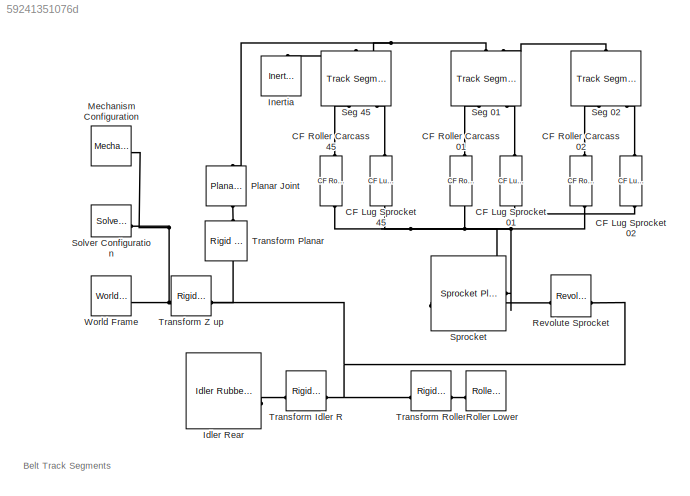
MODEL slx_59241351076d
KIND model
CONFIG AbsTol = 1e-3
CONFIG EnableMultiTasking = on
CONFIG SolverName = ode23t
CONFIG StopTime = 2.5
BLOCK [Reference] CF Lug Sprocket 01  REF=sm_trackV_lib_belt_contact_internal_sets/CF Lug Sprocket
Planar t21
  NameLocation = top
  SourceBlock = sm_trackV_lib_belt_contact_internal_sets/CF Lug Sprocket\nPlanar t21
BLOCK [Reference] CF Lug Sprocket 02  REF=sm_trackV_lib_belt_contact_internal_sets/CF Lug Sprocket
Planar t21
  NameLocation = top
  SourceBlock = sm_trackV_lib_belt_contact_internal_sets/CF Lug Sprocket\nPlanar t21
BLOCK [Reference] CF Lug Sprocket 45  REF=sm_trackV_lib_belt_contact_internal_sets/CF Lug Sprocket
Planar t21
  NameLocation = top
  SourceBlock = sm_trackV_lib_belt_contact_internal_sets/CF Lug Sprocket\nPlanar t21
BLOCK [Reference] CF Roller Carcass 01  REF=sm_trackV_lib_belt_contact/CF Roller Carcass Planar
  NameLocation = top
  SourceBlock = sm_trackV_lib_belt_contact/CF Roller Carcass Planar
  SourceType = Contact Force between Belt and Roller (Planar)
BLOCK [Reference] CF Roller Carcass 02  REF=sm_trackV_lib_belt_contact/CF Roller Carcass Planar
  NameLocation = top
  SourceBlock = sm_trackV_lib_belt_contact/CF Roller Carcass Planar
  SourceType = Contact Force between Belt and Roller (Planar)
BLOCK [Reference] CF Roller Carcass 45  REF=sm_trackV_lib_belt_contact/CF Roller Carcass Planar
  NameLocation = top
  SourceBlock = sm_trackV_lib_belt_contact/CF Roller Carcass Planar
  SourceType = Contact Force between Belt and Roller (Planar)
BLOCK [Reference] Idler Rear  REF=sm_trackV_lib_belt_underc_elem/Idler
Rubber Track
Planar
  SourceBlock = sm_trackV_lib_belt_underc_elem/Idler\nRubber Track\nPlanar
  SourceType = Idler, Belt Track, Planar Contact
BLOCK [Reference] Inertia  REF=sm_lib/Body Elements/Inertia
  NameLocation = right
  SourceBlock = sm_lib/Body Elements/Inertia
  SourceType = Inertia
BLOCK [Reference] Mechanism Configuration  REF=sm_lib/Utilities/Mechanism
Configuration
  SourceBlock = sm_lib/Utilities/Mechanism\nConfiguration
  SourceType = Mechanism\nConfiguration
BLOCK [Reference] Planar Joint  REF=sm_lib/Joints/Planar Joint
  NameLocation = right
  SourceBlock = sm_lib/Joints/Planar Joint
  SourceType = Planar Joint
BLOCK [Reference] Revolute Sprocket  REF=sm_lib/Joints/Revolute Joint
  SourceBlock = sm_lib/Joints/Revolute Joint
  SourceType = Revolute Joint
BLOCK [Reference] Roller Lower  REF=sm_trackV_lib_belt_underc_elem/Roller Lower
Rubber Track
Planar
  SourceBlock = sm_trackV_lib_belt_underc_elem/Roller Lower\nRubber Track\nPlanar
  SourceType = Lower Roller, Belt Track, Planar Contact
BLOCK [Reference] Seg 01  REF=sm_trackV_lib_belt_segment/Track Segment
Belt
Planar
  NameLocation = right
  SourceBlock = sm_trackV_lib_belt_segment/Track Segment\nBelt\nPlanar
  SourceType = Belt Segment, Point Cloud to Groud, Planar Contact Internal
BLOCK [Reference] Seg 02  REF=sm_trackV_lib_belt_segment/Track Segment
Belt
Planar
  NameLocation = right
  SourceBlock = sm_trackV_lib_belt_segment/Track Segment\nBelt\nPlanar
  SourceType = Belt Segment, Point Cloud to Groud, Planar Contact Internal
BLOCK [Reference] Seg 45  REF=sm_trackV_lib_belt_segment/Track Segment
Belt
Planar
  NameLocation = right
  SourceBlock = sm_trackV_lib_belt_segment/Track Segment\nBelt\nPlanar
  SourceType = Belt Segment, Point Cloud to Groud, Planar Contact Internal
BLOCK [Reference] Solver Configuration  REF=nesl_utility/Solver
Configuration
  SourceBlock = nesl_utility/Solver\nConfiguration
  SourceType = Solver\nConfiguration
BLOCK [Reference] Sprocket  REF=sm_trackV_lib_belt_underc_elem/Sprocket
Planar
t21
  SourceBlock = sm_trackV_lib_belt_underc_elem/Sprocket\nPlanar\nt21
  SourceType = Sprocket Wheel, Belt Track, Planar Contact
BLOCK [Reference] Transform Idler R  REF=sm_lib/Frames and
Transforms/Rigid
Transform
  SourceBlock = sm_lib/Frames and\nTransforms/Rigid\nTransform
  SourceType = Rigid\nTransform
BLOCK [Reference] Transform Planar  REF=sm_lib/Frames and
Transforms/Rigid
Transform
  NameLocation = right
  SourceBlock = sm_lib/Frames and\nTransforms/Rigid\nTransform
  SourceType = Rigid\nTransform
BLOCK [Reference] Transform Roller  REF=sm_lib/Frames and
Transforms/Rigid
Transform
  SourceBlock = sm_lib/Frames and\nTransforms/Rigid\nTransform
  SourceType = Rigid\nTransform
BLOCK [Reference] Transform Z up  REF=sm_lib/Frames and
Transforms/Rigid
Transform
  SourceBlock = sm_lib/Frames and\nTransforms/Rigid\nTransform
  SourceType = Rigid\nTransform
BLOCK [Reference] World Frame  REF=sm_lib/Frames and
Transforms/World Frame
  SourceBlock = sm_lib/Frames and\nTransforms/World Frame
  SourceType = World Frame
ANNOTATION (root): Belt Track Segments
PNET net1: CF Lug Sprocket 01:LConn1 -- CF Lug Sprocket 02:LConn1 -- CF Lug Sprocket 45:LConn1 -- Sprocket:LConn1
PLINE CF Lug Sprocket 01:RConn1 -- Seg 01:RConn3
PLINE CF Lug Sprocket 02:RConn1 -- Seg 02:RConn3
PLINE CF Lug Sprocket 45:RConn1 -- Seg 45:RConn3
PNET net2: CF Roller Carcass 01:LConn1 -- CF Roller Carcass 02:LConn1 -- CF Roller Carcass 45:LConn1 -- Sprocket:LConn2
PLINE CF Roller Carcass 01:RConn1 -- Seg 01:RConn1
PLINE CF Roller Carcass 02:RConn1 -- Seg 02:RConn1
PLINE CF Roller Carcass 45:RConn1 -- Seg 45:RConn1
PLINE Idler Rear:LConn1 -- Transform Idler R:RConn1
PLINE Inertia:RConn1 -- Seg 45:LConn1
PNET net3: Mechanism Configuration:RConn1 -- Solver Configuration:RConn1 -- Transform Z up:LConn1 -- World Frame:RConn1
PLINE Planar Joint:LConn1 -- Transform Planar:RConn1
PNET net4: Planar Joint:RConn1 -- Seg 01:LConn1 -- Seg 45:LConn2
PNET net5: Revolute Sprocket:LConn1 -- Transform Idler R:LConn1 -- Transform Planar:LConn1 -- Transform Roller:LConn1 -- Transform Z up:RConn1
PLINE Revolute Sprocket:RConn1 -- Sprocket:RConn1
PLINE Roller Lower:LConn1 -- Transform Roller:RConn1
PLINE Seg 01:LConn2 -- Seg 02:LConn1
note: PNET lines group multi-terminal physical nets as a canonical sorted terminal list (undirected conserving connections); 2-terminal nets keep the pairwise PLINE form
